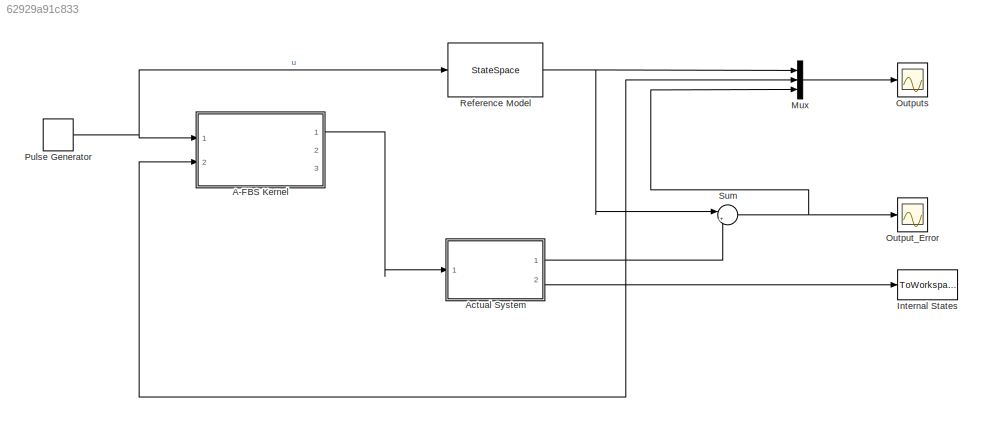
MODEL slx_62929a91c833
KIND model
CONFIG AbsTol = auto
CONFIG FixedStep = 0.0001
CONFIG MaxStep = auto
CONFIG MinStep = auto
CONFIG RelTol = 1e-3
CONFIG SampleTimeConstraint = Unconstrained
CONFIG Solver = ode3
CONFIG SolverMode = Auto
CONFIG SolverName = ode3
CONFIG StartTime = 0.0
CONFIG StopTime = 10
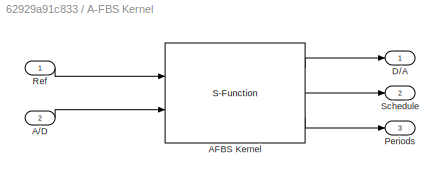
BLOCK [SubSystem] A-FBS Kernel
  Ports = [2, 3]
  RequestExecContextInheritance = off
BLOCK [Inport] A-FBS Kernel/A//D
  IconDisplay = Port number
  Port = 2
BLOCK [S-Function] A-FBS Kernel/AFBS Kernel
  FunctionName = kernel
  Parameters = alpha, h_h, h_l
  Ports = [2, 3]
BLOCK [Outport] A-FBS Kernel/D//A
  IconDisplay = Port number
BLOCK [Outport] A-FBS Kernel/Periods
  IconDisplay = Port number
  Port = 3
BLOCK [Inport] A-FBS Kernel/Ref
  IconDisplay = Port number
BLOCK [Outport] A-FBS Kernel/Schedule
  IconDisplay = Port number
  Port = 2
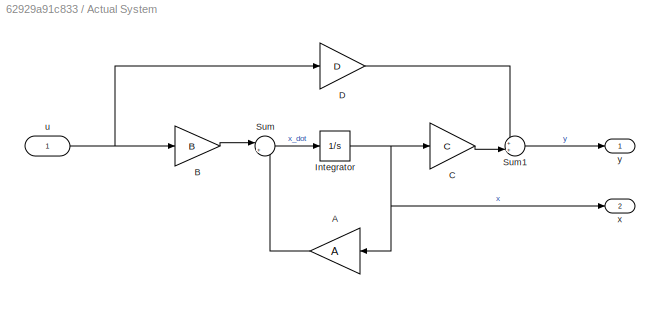
BLOCK [SubSystem] Actual System
  Ports = [1, 2]
  RequestExecContextInheritance = off
BLOCK [Gain] Actual System/A
  Gain = A
  Multiplication = Matrix(K*u)
  OutDataTypeStr = Inherit: Inherit via internal rule
  ParamDataTypeStr = Inherit: Inherit via internal rule
  SaturateOnIntegerOverflow = off
BLOCK [Gain] Actual System/B
  Gain = B
  Multiplication = Matrix(K*u)
  OutDataTypeStr = Inherit: Inherit via internal rule
  ParamDataTypeStr = Inherit: Inherit via internal rule
  SaturateOnIntegerOverflow = off
BLOCK [Gain] Actual System/C
  Gain = C
  Multiplication = Matrix(K*u)
  OutDataTypeStr = Inherit: Inherit via internal rule
  ParamDataTypeStr = Inherit: Inherit via internal rule
  SaturateOnIntegerOverflow = off
BLOCK [Gain] Actual System/D
  Gain = D
  Multiplication = Matrix(K*u)
  OutDataTypeStr = Inherit: Inherit via internal rule
  ParamDataTypeStr = Inherit: Inherit via internal rule
  SaturateOnIntegerOverflow = off
BLOCK [Integrator] Actual System/Integrator
  Ports = [1, 1]
BLOCK [Sum] Actual System/Sum
  IconShape = round
  InputSameDT = off
  Inputs = |++
  OutDataTypeStr = Inherit: Inherit via internal rule
  Ports = [2, 1]
  SaturateOnIntegerOverflow = off
BLOCK [Sum] Actual System/Sum1
  IconShape = round
  InputSameDT = off
  Inputs = ++|
  OutDataTypeStr = Inherit: Inherit via internal rule
  Ports = [2, 1]
  SaturateOnIntegerOverflow = off
BLOCK [Inport] Actual System/u
  IconDisplay = Port number
BLOCK [Outport] Actual System/x
  IconDisplay = Port number
  Port = 2
BLOCK [Outport] Actual System/y
  IconDisplay = Port number
BLOCK [ToWorkspace] Internal States
  FixptAsFi = on
  MaxDataPoints = inf
  Ports = [1]
  SampleTime = -1
  Save2DSignal = 3-D array (concatenate along third dimension)
  SaveFormat = Timeseries
  VariableName = simout
BLOCK [Mux] Mux
  DisplayOption = bar
  Inputs = 3
  Ports = [3, 1]
BLOCK [Scope] Output_Error
  Floating = off
  LimitDataPoints = off
  NumInputPorts = 1
  Ports = [1]
  SaveName = ScopeData1
BLOCK [Scope] Outputs
  Floating = off
  LimitDataPoints = off
  NumInputPorts = 1
  Ports = [1]
BLOCK [DiscretePulseGenerator] Pulse Generator
  Period = 30
  Ports = [0, 1]
  PulseType = Time based
  PulseWidth = 50
BLOCK [StateSpace] Reference Model
  A = A
  B = B
  C = C
  D = D
  Ports = [1, 1]
  X0 = 0
BLOCK [Sum] Sum
  IconShape = round
  InputSameDT = off
  Inputs = |+-
  OutDataTypeStr = Inherit: Inherit via internal rule
  Ports = [2, 1]
  SaturateOnIntegerOverflow = off
LINE A-FBS Kernel/A//D:1 -> A-FBS Kernel/AFBS Kernel:2
LINE A-FBS Kernel/AFBS Kernel:1 -> A-FBS Kernel/D//A:1
LINE A-FBS Kernel/AFBS Kernel:2 -> A-FBS Kernel/Schedule:1
LINE A-FBS Kernel/AFBS Kernel:3 -> A-FBS Kernel/Periods:1
LINE A-FBS Kernel/Ref:1 -> A-FBS Kernel/AFBS Kernel:1
LINE A-FBS Kernel:1 -> Actual System:1
LINE Actual System/A:1 -> Actual System/Sum:2
LINE Actual System/B:1 -> Actual System/Sum:1
LINE Actual System/C:1 -> Actual System/Sum1:2
LINE Actual System/D:1 -> Actual System/Sum1:1
NET Actual System/Integrator:1 -> Actual System/A:1, Actual System/C:1, Actual System/x:1
LINE Actual System/Sum1:1 -> Actual System/y:1
LINE Actual System/Sum:1 -> Actual System/Integrator:1
NET Actual System/u:1 -> Actual System/B:1, Actual System/D:1
NET Actual System:1 -> A-FBS Kernel:2, Mux:2, Sum:2
LINE Actual System:2 -> Internal States:1
LINE Mux:1 -> Outputs:1
NET Pulse Generator:1 -> A-FBS Kernel:1, Reference Model:1
NET Reference Model:1 -> Mux:1, Sum:1
NET Sum:1 -> Mux:3, Output_Error:1
note: NET lines group one-source signal fan-out (src -> all destinations, sorted); 1:1 wires keep LINE
